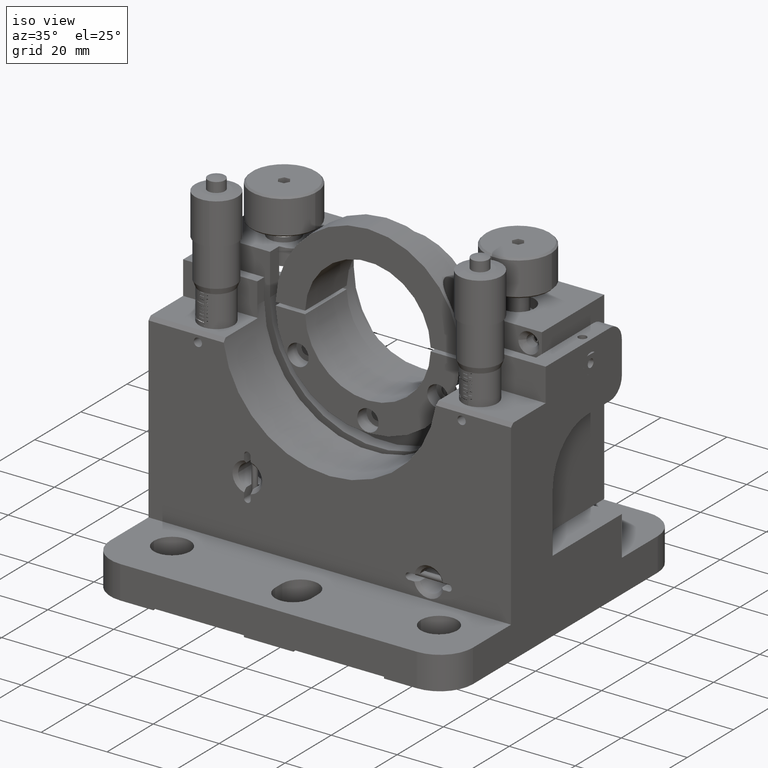
[diagram: clean part render]
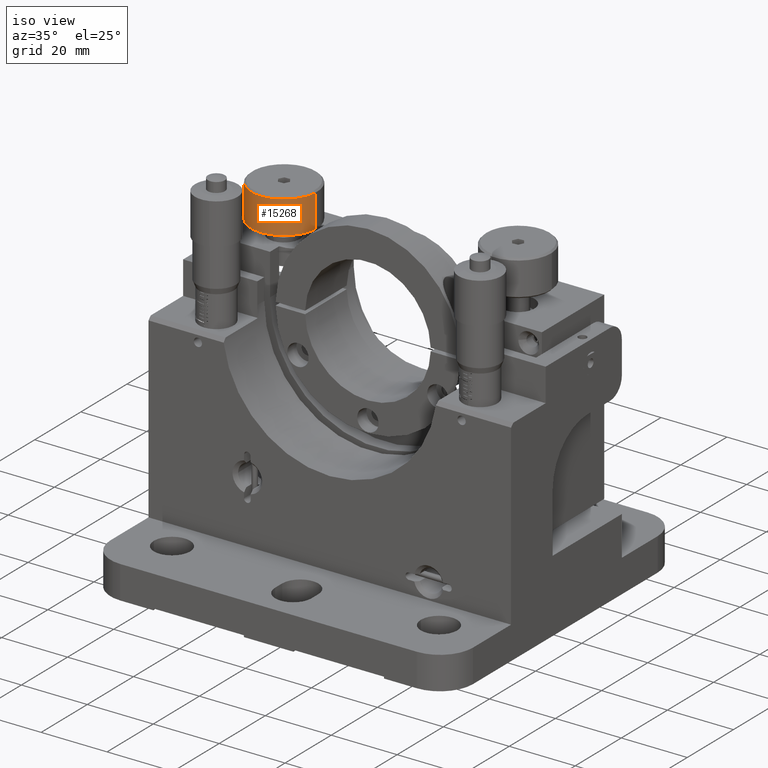
[diagram: same view with one face highlighted and labeled with its STEP entity id]
A machine part, iso view. The second image highlights one B-rep face of the part: STEP entity #15268.
In plain terms, the highlighted cylindrical surface (partial cylindrical patch) has radius 10 mm, axis along (0, 0, -1).
Its self-contained STEP definition (entity closure, byte-faithful):
#660 = DIRECTION ( 'NONE',  ( 0.9973054756562411700, -0.07336067220301772900, 5.204170427930421300E-016 ) ) ;
#1022 = CARTESIAN_POINT ( 'NONE',  ( -25.52694524343785100, 6.666393277969848300, 4.938707490836526000 ) ) ;
#1722 = LINE ( 'NONE', #7945, #14961 ) ;
#2178 = CARTESIAN_POINT ( 'NONE',  ( -35.50000000000027000, 7.400000000000023400, 4.938707490836521600 ) ) ;
#2955 = CARTESIAN_POINT ( 'NONE',  ( -45.47305475656268200, 8.133606722030201300, 4.938707490836516300 ) ) ;
#3387 = AXIS2_PLACEMENT_3D ( 'NONE', #14309, #13104, #660 ) ;
#3444 = DIRECTION ( 'NONE',  ( 0.9973054756562411700, -0.07336067220301772900, 5.204170427930421300E-016 ) ) ;
#3722 = ORIENTED_EDGE ( 'NONE', *, *, #4826, .T. ) ;
#4073 = DIRECTION ( 'NONE',  ( 5.549399531346264800E-016, 9.250881015859494800E-019, -1.000000000000000000 ) ) ;
#4826 = EDGE_CURVE ( 'NONE', #13467, #11535, #10464, .T. ) ;
#4827 = ORIENTED_EDGE ( 'NONE', *, *, #13404, .F. ) ;
#5466 = CARTESIAN_POINT ( 'NONE',  ( -35.50000000000027000, 7.400000000000023400, 5.438707490836518100 ) ) ;
#6159 = VECTOR ( 'NONE', #4073, 1000.000000000000000 ) ;
#7324 = LINE ( 'NONE', #11514, #6159 ) ;
#7557 = ORIENTED_EDGE ( 'NONE', *, *, #12874, .T. ) ;
#7911 = DIRECTION ( 'NONE',  ( -0.9973054756562411700, 0.07336067220301772900, -5.204170427930421300E-016 ) ) ;
#7945 = CARTESIAN_POINT ( 'NONE',  ( -25.52694524343785400, 6.666393277969848300, 5.438707490836523400 ) ) ;
#9068 = DIRECTION ( 'NONE',  ( 5.549399531346264800E-016, 9.250881015859492900E-019, -1.000000000000000000 ) ) ;
#10464 = CIRCLE ( 'NONE', #3387, 10.00000000000000000 ) ;
#10918 = DIRECTION ( 'NONE',  ( 5.549399531346264800E-016, 9.250881015859492900E-019, -1.000000000000000000 ) ) ;
#11088 = CIRCLE ( 'NONE', #15780, 10.00000000000000000 ) ;
#11294 = VERTEX_POINT ( 'NONE', #1022 ) ;
#11393 = EDGE_CURVE ( 'NONE', #11982, #13467, #7324, .T. ) ;
#11514 = CARTESIAN_POINT ( 'NONE',  ( -45.47305475656268200, 8.133606722030201300, 5.438707490836512700 ) ) ;
#11535 = VERTEX_POINT ( 'NONE', #13345 ) ;
#11780 = CARTESIAN_POINT ( 'NONE',  ( -45.47305475656268200, 8.133606722030201300, -5.061292509163487300 ) ) ;
#11982 = VERTEX_POINT ( 'NONE', #2955 ) ;
#12005 = EDGE_LOOP ( 'NONE', ( #4827, #7557, #12742, #3722 ) ) ;
#12742 = ORIENTED_EDGE ( 'NONE', *, *, #11393, .T. ) ;
#12873 = DIRECTION ( 'NONE',  ( 5.549399531346264800E-016, 9.250881015859494800E-019, -1.000000000000000000 ) ) ;
#12874 = EDGE_CURVE ( 'NONE', #11294, #11982, #11088, .T. ) ;
#12944 = CYLINDRICAL_SURFACE ( 'NONE', #15410, 10.00000000000000000 ) ;
#13104 = DIRECTION ( 'NONE',  ( -5.549399531346264800E-016, -9.250881015859492900E-019, 1.000000000000000000 ) ) ;
#13345 = CARTESIAN_POINT ( 'NONE',  ( -25.52694524343785400, 6.666393277969848300, -5.061292509163477500 ) ) ;
#13404 = EDGE_CURVE ( 'NONE', #11294, #11535, #1722, .T. ) ;
#13467 = VERTEX_POINT ( 'NONE', #11780 ) ;
#14305 = FACE_OUTER_BOUND ( 'NONE', #12005, .T. ) ;
#14309 = CARTESIAN_POINT ( 'NONE',  ( -35.50000000000027000, 7.400000000000023400, -5.061292509163482800 ) ) ;
#14961 = VECTOR ( 'NONE', #12873, 1000.000000000000000 ) ;
#15268 = ADVANCED_FACE ( 'NONE', ( #14305 ), #12944, .T. ) ;
#15410 = AXIS2_PLACEMENT_3D ( 'NONE', #5466, #9068, #7911 ) ;
#15780 = AXIS2_PLACEMENT_3D ( 'NONE', #2178, #10918, #3444 ) ;